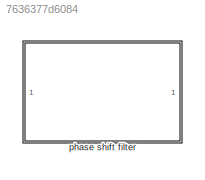
MODEL slx_7636377d6084
KIND library
CONFIG AbsTol = auto
CONFIG EnableMultiTasking = off
CONFIG FixedStep = auto
CONFIG MaxStep = auto
CONFIG MinStep = auto
CONFIG RelTol = 1e-3
CONFIG SampleTimeConstraint = Unconstrained
CONFIG SolverName = VariableStepAuto
CONFIG StartTime = 0.0
CONFIG StopTime = 10.0
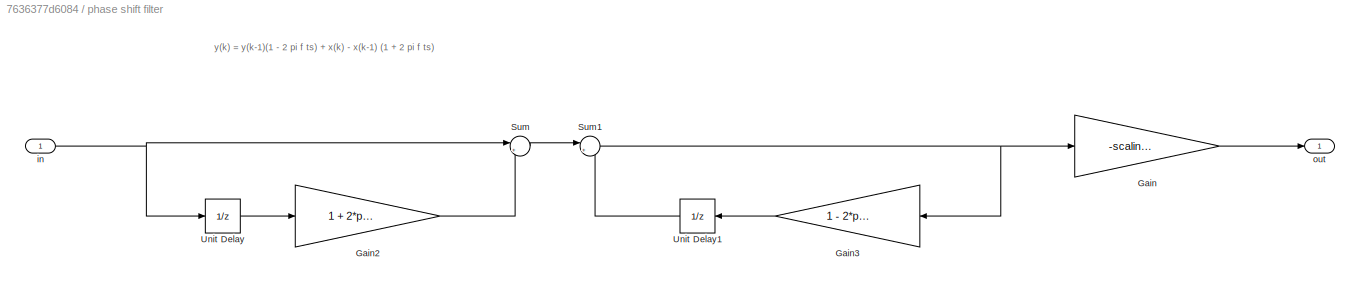
BLOCK [SubSystem] phase shift filter
BLOCK [Gain] phase shift filter/Gain
  Gain = -scaling_factor
BLOCK [Gain] phase shift filter/Gain2
  Gain = 1 + 2*pi*f*ts
BLOCK [Gain] phase shift filter/Gain3
  Gain = 1 - 2*pi*f*ts
BLOCK [Sum] phase shift filter/Sum
  Inputs = |+-
BLOCK [Sum] phase shift filter/Sum1
  Inputs = |++
BLOCK [UnitDelay] phase shift filter/Unit Delay
  HasFrameUpgradeWarning = on
  SampleTime = -1
BLOCK [UnitDelay] phase shift filter/Unit Delay1
  HasFrameUpgradeWarning = on
  SampleTime = -1
BLOCK [Inport] phase shift filter/in
BLOCK [Outport] phase shift filter/out
ANNOTATION phase shift filter: y(k) = y(k-1)(1 - 2 pi f ts) + x(k) - x(k-1) (1 + 2 pi f ts)
LINE phase shift filter/Gain2:1 -> phase shift filter/Sum:2
LINE phase shift filter/Gain3:1 -> phase shift filter/Unit Delay1:1
LINE phase shift filter/Gain:1 -> phase shift filter/out:1
NET phase shift filter/Sum1:1 -> phase shift filter/Gain3:1, phase shift filter/Gain:1
LINE phase shift filter/Sum:1 -> phase shift filter/Sum1:1
LINE phase shift filter/Unit Delay1:1 -> phase shift filter/Sum1:2
LINE phase shift filter/Unit Delay:1 -> phase shift filter/Gain2:1
NET phase shift filter/in:1 -> phase shift filter/Sum:1, phase shift filter/Unit Delay:1
note: NET lines group one-source signal fan-out (src -> all destinations, sorted); 1:1 wires keep LINE
